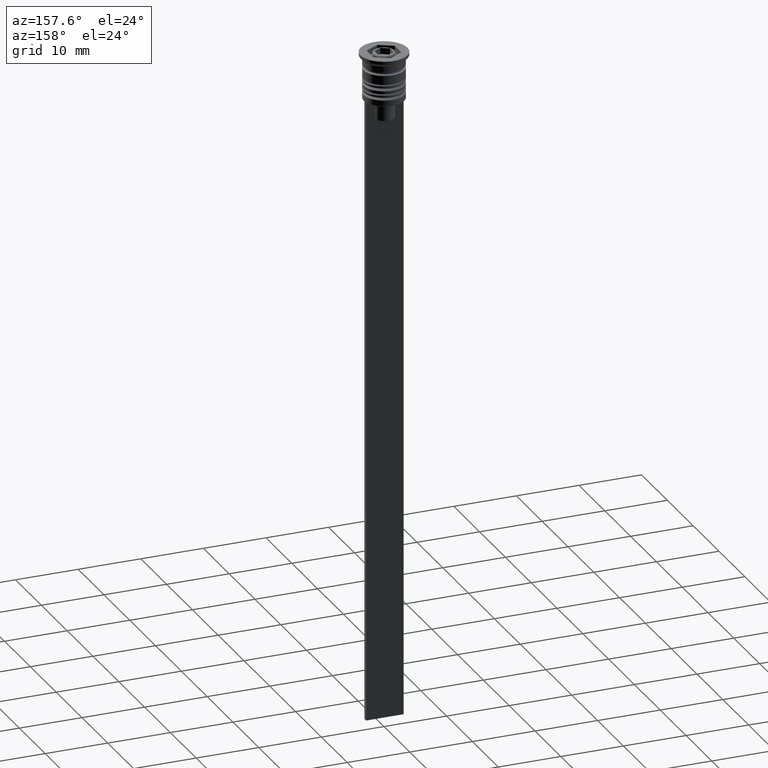
[diagram: clean part render]
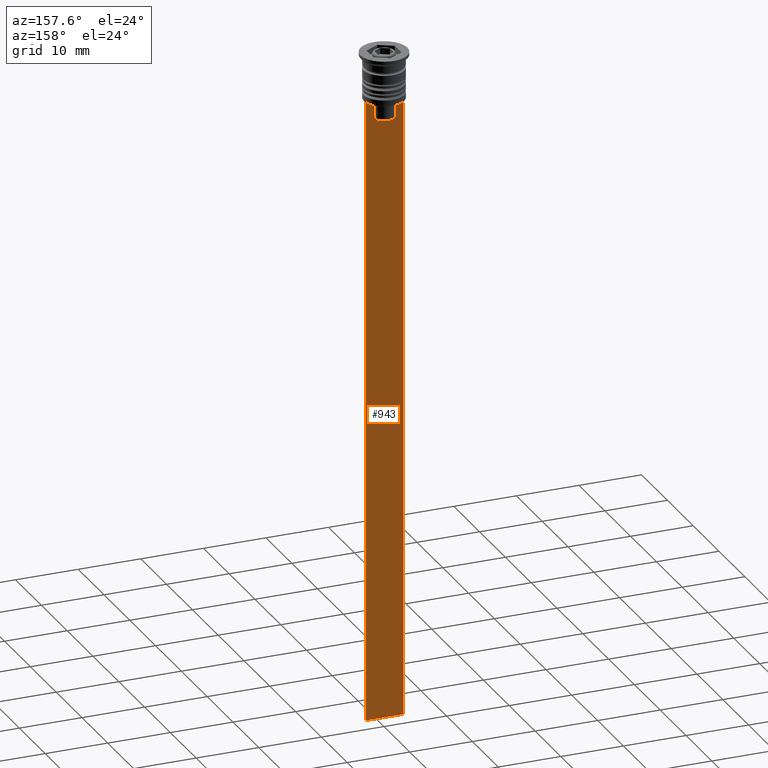
[diagram: same view with one face highlighted and labeled with its STEP entity id]
A machine part, auxiliary view. The second image highlights one B-rep face of the part: STEP entity #943.
In plain terms, the highlighted planar face has unit normal (0, -1, -0).
Its self-contained STEP definition (entity closure, byte-faithful):
#15 = CARTESIAN_POINT ( 'NONE',  ( -1.612451549659713601, 0.3500000000000000333, -8.000000000000000000 ) ) ;
#17 = EDGE_CURVE ( 'NONE', #631, #96, #1980, .T. ) ;
#27 = CARTESIAN_POINT ( 'NONE',  ( 2.999999999999995559, 0.3500000000000000333, -107.5000000000000000 ) ) ;
#52 = ORIENTED_EDGE ( 'NONE', *, *, #1141, .F. ) ;
#71 = EDGE_CURVE ( 'NONE', #941, #2164, #646, .T. ) ;
#92 = CARTESIAN_POINT ( 'NONE',  ( 1.782523989086206795, 0.3500000000000000333, -7.833797837268088315 ) ) ;
#96 = VERTEX_POINT ( 'NONE', #101 ) ;
#101 = CARTESIAN_POINT ( 'NONE',  ( -3.000000000000004441, 0.3500000000000000333, -107.5000000000000000 ) ) ;
#109 = CARTESIAN_POINT ( 'NONE',  ( 2.999999999999995559, 0.3500000000000000333, -7.500000000000000000 ) ) ;
#286 = VECTOR ( 'NONE', #1028, 1000.000000000000000 ) ;
#297 = ORIENTED_EDGE ( 'NONE', *, *, #1530, .T. ) ;
#315 = CARTESIAN_POINT ( 'NONE',  ( -2.121320343559647270, 0.3500000000000000333, -7.500000000000000000 ) ) ;
#369 = CARTESIAN_POINT ( 'NONE',  ( 2.121320343559647270, 0.3500000000000000333, -7.500000000000000000 ) ) ;
#454 = CARTESIAN_POINT ( 'NONE',  ( 1.952040775369266346, 0.3500000000000000333, -7.667021484535463394 ) ) ;
#489 = CARTESIAN_POINT ( 'NONE',  ( 1.612451549659713601, 0.3500000000000000333, -10.49999999999999822 ) ) ;
#549 = LINE ( 'NONE', #1425, #1378 ) ;
#551 = ORIENTED_EDGE ( 'NONE', *, *, #738, .T. ) ;
#563 = VERTEX_POINT ( 'NONE', #954 ) ;
#589 = DIRECTION ( 'NONE',  ( 0.000000000000000000, -1.000000000000000000, -0.000000000000000000 ) ) ;
#593 = CARTESIAN_POINT ( 'NONE',  ( 2.121320343559647270, 0.3500000000000000333, -7.500000000000000000 ) ) ;
#631 = VERTEX_POINT ( 'NONE', #1525 ) ;
#646 = LINE ( 'NONE', #1280, #772 ) ;
#651 = ORIENTED_EDGE ( 'NONE', *, *, #852, .T. ) ;
#661 = ORIENTED_EDGE ( 'NONE', *, *, #1650, .T. ) ;
#738 = EDGE_CURVE ( 'NONE', #563, #1731, #1461, .T. ) ;
#742 = CARTESIAN_POINT ( 'NONE',  ( 2.999999999999995559, 0.3500000000000000333, -1.459304675784417915 ) ) ;
#752 = ORIENTED_EDGE ( 'NONE', *, *, #71, .T. ) ;
#772 = VECTOR ( 'NONE', #2130, 1000.000000000000000 ) ;
#805 = CARTESIAN_POINT ( 'NONE',  ( -1.782527878033863589, 0.3500000000000000333, -7.833794036819862860 ) ) ;
#852 = EDGE_CURVE ( 'NONE', #1367, #631, #1804, .T. ) ;
#866 = ORIENTED_EDGE ( 'NONE', *, *, #2155, .T. ) ;
#876 = VERTEX_POINT ( 'NONE', #1989 ) ;
#895 = LINE ( 'NONE', #1563, #286 ) ;
#896 = CARTESIAN_POINT ( 'NONE',  ( 2.999999999999995559, 0.3500000000000000333, -1.459304675784417915 ) ) ;
#900 = VERTEX_POINT ( 'NONE', #369 ) ;
#932 = DIRECTION ( 'NONE',  ( -0.000000000000000000, -0.000000000000000000, 1.000000000000000000 ) ) ;
#939 = CARTESIAN_POINT ( 'NONE',  ( 1.612451549659713601, 0.3500000000000000333, 0.000000000000000000 ) ) ;
#941 = VERTEX_POINT ( 'NONE', #2080 ) ;
#943 = ADVANCED_FACE ( 'NONE', ( #1073 ), #1578, .F. ) ;
#954 = CARTESIAN_POINT ( 'NONE',  ( -3.000000000000004441, 0.3499999999999999223, -7.500000000000000000 ) ) ;
#1009 = CARTESIAN_POINT ( 'NONE',  ( 2.999999999999995559, 0.3500000000000000333, -7.500000000000000000 ) ) ;
#1028 = DIRECTION ( 'NONE',  ( 1.000000000000000000, 0.000000000000000000, 0.000000000000000000 ) ) ;
#1073 = FACE_OUTER_BOUND ( 'NONE', #2136, .T. ) ;
#1094 = ORIENTED_EDGE ( 'NONE', *, *, #17, .T. ) ;
#1096 = LINE ( 'NONE', #939, #1907 ) ;
#1141 = EDGE_CURVE ( 'NONE', #563, #96, #549, .T. ) ;
#1156 = VECTOR ( 'NONE', #1376, 1000.000000000000000 ) ;
#1162 = CARTESIAN_POINT ( 'NONE',  ( -1.612451549659713601, 0.3500000000000000333, 0.000000000000000000 ) ) ;
#1280 = CARTESIAN_POINT ( 'NONE',  ( 0.000000000000000000, 0.3500000000000000333, -10.49999999999999822 ) ) ;
#1304 = AXIS2_PLACEMENT_3D ( 'NONE', #896, #589, #1566 ) ;
#1324 = ORIENTED_EDGE ( 'NONE', *, *, #2088, .T. ) ;
#1367 = VERTEX_POINT ( 'NONE', #1009 ) ;
#1376 = DIRECTION ( 'NONE',  ( -1.000000000000000000, 0.000000000000000000, 0.000000000000000000 ) ) ;
#1378 = VECTOR ( 'NONE', #1926, 1000.000000000000000 ) ;
#1412 = VECTOR ( 'NONE', #1988, 1000.000000000000000 ) ;
#1416 = DIRECTION ( 'NONE',  ( 0.000000000000000000, 0.000000000000000000, -1.000000000000000000 ) ) ;
#1425 = CARTESIAN_POINT ( 'NONE',  ( -3.000000000000004441, 0.3500000000000000333, -1.459304675784417915 ) ) ;
#1445 = CARTESIAN_POINT ( 'NONE',  ( 1.612451549659713601, 0.3500000000000000333, -8.000000000000000000 ) ) ;
#1461 = LINE ( 'NONE', #109, #1412 ) ;
#1466 = CARTESIAN_POINT ( 'NONE',  ( -2.121320343559647270, 0.3500000000000000333, -7.500000000000000000 ) ) ;
#1525 = CARTESIAN_POINT ( 'NONE',  ( 2.999999999999995559, 0.3500000000000000333, -107.5000000000000000 ) ) ;
#1530 = EDGE_CURVE ( 'NONE', #900, #1367, #895, .T. ) ;
#1550 = VECTOR ( 'NONE', #1821, 1000.000000000000000 ) ;
#1563 = CARTESIAN_POINT ( 'NONE',  ( 2.999999999999995559, 0.3500000000000000333, -7.500000000000000000 ) ) ;
#1566 = DIRECTION ( 'NONE',  ( 0.000000000000000000, 0.000000000000000000, -1.000000000000000000 ) ) ;
#1578 = PLANE ( 'NONE',  #1304 ) ;
#1650 = EDGE_CURVE ( 'NONE', #2164, #876, #1096, .T. ) ;
#1676 = CARTESIAN_POINT ( 'NONE',  ( -1.612451549659713601, 0.3500000000000000333, -8.000000000000000000 ) ) ;
#1731 = VERTEX_POINT ( 'NONE', #315 ) ;
#1766 = B_SPLINE_CURVE_WITH_KNOTS ( 'NONE', 3,
 ( #1466, #1995, #805, #1676 ),
 .UNSPECIFIED., .F., .F.,
 ( 4, 4 ),
 ( 0.003684653461239336628, 0.004398058763641255961 ),
 .UNSPECIFIED. ) ;
#1796 = EDGE_CURVE ( 'NONE', #1946, #941, #2175, .T. ) ;
#1800 = ORIENTED_EDGE ( 'NONE', *, *, #1796, .T. ) ;
#1804 = LINE ( 'NONE', #742, #2003 ) ;
#1821 = DIRECTION ( 'NONE',  ( 0.000000000000000000, 0.000000000000000000, -1.000000000000000000 ) ) ;
#1907 = VECTOR ( 'NONE', #932, 1000.000000000000000 ) ;
#1926 = DIRECTION ( 'NONE',  ( 0.000000000000000000, 0.000000000000000000, -1.000000000000000000 ) ) ;
#1946 = VERTEX_POINT ( 'NONE', #15 ) ;
#1980 = LINE ( 'NONE', #27, #1156 ) ;
#1988 = DIRECTION ( 'NONE',  ( 1.000000000000000000, 0.000000000000000000, 0.000000000000000000 ) ) ;
#1989 = CARTESIAN_POINT ( 'NONE',  ( 1.612451549659713601, 0.3500000000000000333, -8.000000000000000000 ) ) ;
#1995 = CARTESIAN_POINT ( 'NONE',  ( -1.952043732028445167, 0.3500000000000000333, -7.667018567316270961 ) ) ;
#2003 = VECTOR ( 'NONE', #1416, 1000.000000000000000 ) ;
#2080 = CARTESIAN_POINT ( 'NONE',  ( -1.612451549659713601, 0.3500000000000000333, -10.49999999999999822 ) ) ;
#2088 = EDGE_CURVE ( 'NONE', #876, #900, #2139, .T. ) ;
#2130 = DIRECTION ( 'NONE',  ( 1.000000000000000000, 0.000000000000000000, 0.000000000000000000 ) ) ;
#2136 = EDGE_LOOP ( 'NONE', ( #551, #866, #1800, #752, #661, #1324, #297, #651, #1094, #52 ) ) ;
#2139 = B_SPLINE_CURVE_WITH_KNOTS ( 'NONE', 3,
 ( #1445, #92, #454, #593 ),
 .UNSPECIFIED., .F., .F.,
 ( 4, 4 ),
 ( 0.008600796474521226961, 0.009317962624906524910 ),
 .UNSPECIFIED. ) ;
#2155 = EDGE_CURVE ( 'NONE', #1731, #1946, #1766, .T. ) ;
#2164 = VERTEX_POINT ( 'NONE', #489 ) ;
#2175 = LINE ( 'NONE', #1162, #1550 ) ;